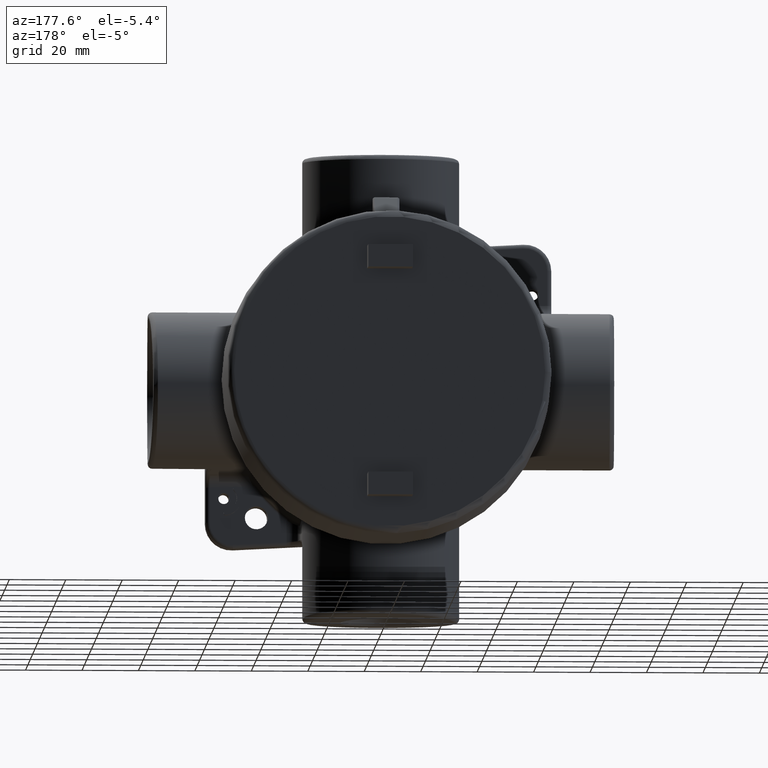
[diagram: clean part render]
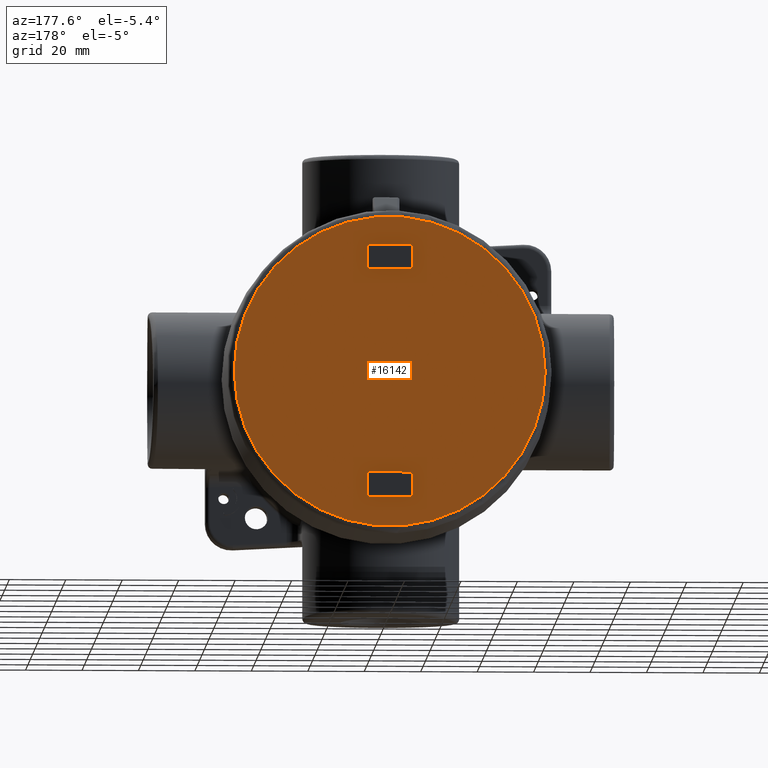
[diagram: same view with one face highlighted and labeled with its STEP entity id]
A machine part, auxiliary view. The second image highlights one B-rep face of the part: STEP entity #16142.
In plain terms, the highlighted planar face has unit normal (-0, 1, 0).
Its self-contained STEP definition (entity closure, byte-faithful):
#116=FACE_BOUND('',#5187,.T.);
#117=FACE_BOUND('',#5188,.T.);
#591=PLANE('',#17201);
#1889=LINE('',#60620,#3208);
#1890=LINE('',#60622,#3209);
#1891=LINE('',#60624,#3210);
#1892=LINE('',#60625,#3211);
#1893=LINE('',#60628,#3212);
#1894=LINE('',#60630,#3213);
#1895=LINE('',#60632,#3214);
#1896=LINE('',#60633,#3215);
#3208=VECTOR('',#20455,0.625);
#3209=VECTOR('',#20456,0.3125);
#3210=VECTOR('',#20457,0.625);
#3211=VECTOR('',#20458,0.3125);
#3212=VECTOR('',#20459,0.625);
#3213=VECTOR('',#20460,0.3125);
#3214=VECTOR('',#20461,0.625);
#3215=VECTOR('',#20462,0.3125);
#4208=FACE_OUTER_BOUND('',#5186,.T.);
#5186=EDGE_LOOP('',(#14715,#14716));
#5187=EDGE_LOOP('',(#14717,#14718,#14719,#14720));
#5188=EDGE_LOOP('',(#14721,#14722,#14723,#14724));
#6264=CIRCLE('',#17202,2.16863370143865);
#6265=CIRCLE('',#17203,2.16863370143865);
#7756=VERTEX_POINT('',#60614);
#7757=VERTEX_POINT('',#60615);
#7758=VERTEX_POINT('',#60618);
#7759=VERTEX_POINT('',#60619);
#7760=VERTEX_POINT('',#60621);
#7761=VERTEX_POINT('',#60623);
#7762=VERTEX_POINT('',#60626);
#7763=VERTEX_POINT('',#60627);
#7764=VERTEX_POINT('',#60629);
#7765=VERTEX_POINT('',#60631);
#10088=EDGE_CURVE('',#7756,#7757,#6264,.T.);
#10089=EDGE_CURVE('',#7757,#7756,#6265,.T.);
#10090=EDGE_CURVE('',#7758,#7759,#1889,.T.);
#10091=EDGE_CURVE('',#7758,#7760,#1890,.T.);
#10092=EDGE_CURVE('',#7760,#7761,#1891,.T.);
#10093=EDGE_CURVE('',#7759,#7761,#1892,.T.);
#10094=EDGE_CURVE('',#7762,#7763,#1893,.T.);
#10095=EDGE_CURVE('',#7763,#7764,#1894,.T.);
#10096=EDGE_CURVE('',#7765,#7764,#1895,.T.);
#10097=EDGE_CURVE('',#7762,#7765,#1896,.T.);
#14715=ORIENTED_EDGE('',*,*,#10088,.T.);
#14716=ORIENTED_EDGE('',*,*,#10089,.T.);
#14717=ORIENTED_EDGE('',*,*,#10090,.F.);
#14718=ORIENTED_EDGE('',*,*,#10091,.T.);
#14719=ORIENTED_EDGE('',*,*,#10092,.T.);
#14720=ORIENTED_EDGE('',*,*,#10093,.F.);
#14721=ORIENTED_EDGE('',*,*,#10094,.T.);
#14722=ORIENTED_EDGE('',*,*,#10095,.T.);
#14723=ORIENTED_EDGE('',*,*,#10096,.F.);
#14724=ORIENTED_EDGE('',*,*,#10097,.F.);
#16142=ADVANCED_FACE('',(#4208,#116,#117),#591,.T.);
#17201=AXIS2_PLACEMENT_3D('',#60613,#20449,#20450);
#17202=AXIS2_PLACEMENT_3D('',#60616,#20451,#20452);
#17203=AXIS2_PLACEMENT_3D('',#60617,#20453,#20454);
#20449=DIRECTION('center_axis',(0.,0.,1.));
#20450=DIRECTION('ref_axis',(1.,0.,0.));
#20451=DIRECTION('center_axis',(0.,0.,1.));
#20452=DIRECTION('ref_axis',(1.,0.,0.));
#20453=DIRECTION('center_axis',(0.,0.,1.));
#20454=DIRECTION('ref_axis',(1.,0.,0.));
#20455=DIRECTION('',(-1.,0.,0.));
#20456=DIRECTION('',(0.,-1.,0.));
#20457=DIRECTION('',(-1.,0.,0.));
#20458=DIRECTION('',(0.,-1.,0.));
#20459=DIRECTION('',(-1.,0.,0.));
#20460=DIRECTION('',(0.,1.,0.));
#20461=DIRECTION('',(-1.,0.,0.));
#20462=DIRECTION('',(0.,1.,0.));
#60613=CARTESIAN_POINT('Origin',(0.,0.,1.46875));
#60614=CARTESIAN_POINT('',(2.16863370143865,0.,1.46875));
#60615=CARTESIAN_POINT('',(-2.16863370143865,-2.65581032098991E-16,1.46875));
#60616=CARTESIAN_POINT('Origin',(0.,0.,1.46875));
#60617=CARTESIAN_POINT('Origin',(0.,0.,1.46875));
#60618=CARTESIAN_POINT('',(0.3125,1.75,1.46875));
#60619=CARTESIAN_POINT('',(-0.3125,1.75,1.46875));
#60620=CARTESIAN_POINT('',(0.3125,1.75,1.46875));
#60621=CARTESIAN_POINT('',(0.3125,1.4375,1.46875));
#60622=CARTESIAN_POINT('',(0.3125,1.75,1.46875));
#60623=CARTESIAN_POINT('',(-0.3125,1.4375,1.46875));
#60624=CARTESIAN_POINT('',(0.3125,1.4375,1.46875));
#60625=CARTESIAN_POINT('',(-0.3125,1.75,1.46875));
#60626=CARTESIAN_POINT('',(0.3125,-1.75,1.46875));
#60627=CARTESIAN_POINT('',(-0.3125,-1.75,1.46875));
#60628=CARTESIAN_POINT('',(0.3125,-1.75,1.46875));
#60629=CARTESIAN_POINT('',(-0.3125,-1.4375,1.46875));
#60630=CARTESIAN_POINT('',(-0.3125,-1.75,1.46875));
#60631=CARTESIAN_POINT('',(0.3125,-1.4375,1.46875));
#60632=CARTESIAN_POINT('',(0.3125,-1.4375,1.46875));
#60633=CARTESIAN_POINT('',(0.3125,-1.75,1.46875));